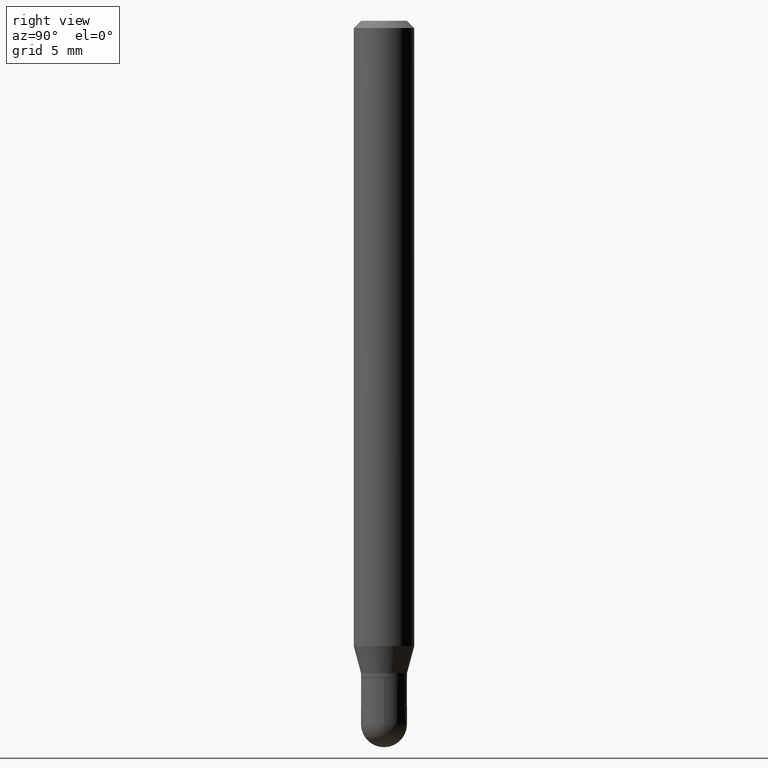
[diagram: clean part render]
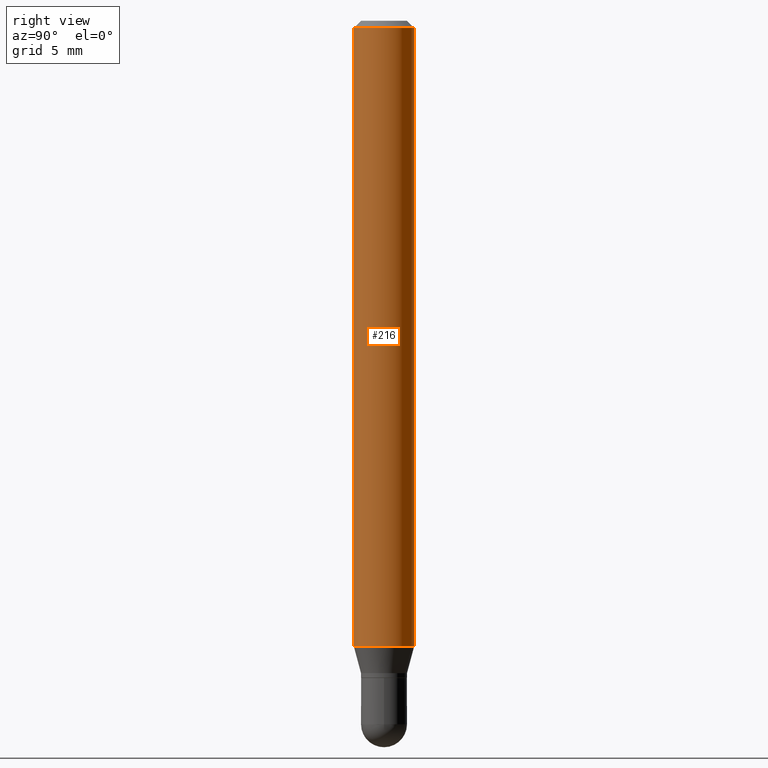
[diagram: same view with one face highlighted and labeled with its STEP entity id]
A machine part, right view. The second image highlights one B-rep face of the part: STEP entity #216.
In plain terms, the highlighted cylindrical surface (edge-blend (fillet) strip) has radius 1.5875 mm, axis along (-0, 0, 1).
Its self-contained STEP definition (entity closure, byte-faithful):
#5 = CIRCLE ( 'NONE', #391, 0.06250000000000000000 ) ;
#11 = ORIENTED_EDGE ( 'NONE', *, *, #23, .F. ) ;
#23 = EDGE_CURVE ( 'NONE', #240, #490, #409, .T. ) ;
#31 = CARTESIAN_POINT ( 'NONE',  ( -4.364351673553598192E-16, -0.06250000000000446865, -1.291019237886466664 ) ) ;
#67 = CARTESIAN_POINT ( 'NONE',  ( 4.440892098500625669E-16, 0.06250000000000000000, -2.182167471269829724E-16 ) ) ;
#124 = CARTESIAN_POINT ( 'NONE',  ( 3.668217229123494478E-31, -5.237201931047594296E-17, -0.01500000000000000812 ) ) ;
#130 = VERTEX_POINT ( 'NONE', #209 ) ;
#133 = VECTOR ( 'NONE', #182, 39.37007874015748143 ) ;
#138 = DIRECTION ( 'NONE',  ( -2.445478152748994695E-29, 3.491467954031727558E-15, 1.000000000000000000 ) ) ;
#141 = EDGE_CURVE ( 'NONE', #429, #130, #5, .T. ) ;
#161 = CARTESIAN_POINT ( 'NONE',  ( -4.364351673553912750E-16, -0.06250000000000005551, -0.01499999999999979128 ) ) ;
#178 = EDGE_CURVE ( 'NONE', #130, #490, #343, .T. ) ;
#181 = LINE ( 'NONE', #217, #255 ) ;
#182 = DIRECTION ( 'NONE',  ( -2.445478152748994695E-29, 3.491467954031727558E-15, 1.000000000000000000 ) ) ;
#187 = ORIENTED_EDGE ( 'NONE', *, *, #141, .T. ) ;
#201 = ORIENTED_EDGE ( 'NONE', *, *, #178, .T. ) ;
#209 = CARTESIAN_POINT ( 'NONE',  ( 4.440892098500942692E-16, 0.06249999999999551747, -1.291019237886467330 ) ) ;
#216 = ADVANCED_FACE ( 'NONE', ( #225 ), #393, .T. ) ;
#217 = CARTESIAN_POINT ( 'NONE',  ( -4.364351673553916201E-16, -0.06250000000000000000, 2.182167471269829724E-16 ) ) ;
#225 = FACE_OUTER_BOUND ( 'NONE', #309, .T. ) ;
#240 = VERTEX_POINT ( 'NONE', #161 ) ;
#255 = VECTOR ( 'NONE', #138, 39.37007874015748143 ) ;
#266 = ORIENTED_EDGE ( 'NONE', *, *, #337, .F. ) ;
#289 = CARTESIAN_POINT ( 'NONE',  ( 4.440892098500943678E-16, 0.06249999999999995837, -0.01500000000000022669 ) ) ;
#309 = EDGE_LOOP ( 'NONE', ( #187, #201, #11, #266 ) ) ;
#315 = DIRECTION ( 'NONE',  ( -6.982962677686265922E-15, -1.000000000000000000, 3.491467954031727558E-15 ) ) ;
#329 = AXIS2_PLACEMENT_3D ( 'NONE', #124, #361, #365 ) ;
#337 = EDGE_CURVE ( 'NONE', #429, #240, #181, .T. ) ;
#343 = LINE ( 'NONE', #67, #133 ) ;
#361 = DIRECTION ( 'NONE',  ( -2.445478152748994695E-29, 3.491467954031727558E-15, 1.000000000000000000 ) ) ;
#365 = DIRECTION ( 'NONE',  ( -6.982962677686265922E-15, -1.000000000000000000, 3.483106191921935554E-15 ) ) ;
#391 = AXIS2_PLACEMENT_3D ( 'NONE', #492, #455, #446 ) ;
#393 = CYLINDRICAL_SURFACE ( 'NONE', #434, 0.06250000000000000000 ) ;
#409 = CIRCLE ( 'NONE', #329, 0.06250000000000000000 ) ;
#429 = VERTEX_POINT ( 'NONE', #31 ) ;
#434 = AXIS2_PLACEMENT_3D ( 'NONE', #442, #511, #315 ) ;
#442 = CARTESIAN_POINT ( 'NONE',  ( 0.000000000000000000, 0.000000000000000000, 0.000000000000000000 ) ) ;
#446 = DIRECTION ( 'NONE',  ( -6.982962677686265922E-15, -1.000000000000000000, 4.370956789862821150E-15 ) ) ;
#455 = DIRECTION ( 'NONE',  ( -2.445478152748994695E-29, 3.491467954031727558E-15, 1.000000000000000000 ) ) ;
#490 = VERTEX_POINT ( 'NONE', #289 ) ;
#492 = CARTESIAN_POINT ( 'NONE',  ( 3.157159341030012166E-29, -4.507552297119063437E-15, -1.291019237886467108 ) ) ;
#511 = DIRECTION ( 'NONE',  ( -2.445478152748994695E-29, 3.491467954031727558E-15, 1.000000000000000000 ) ) ;